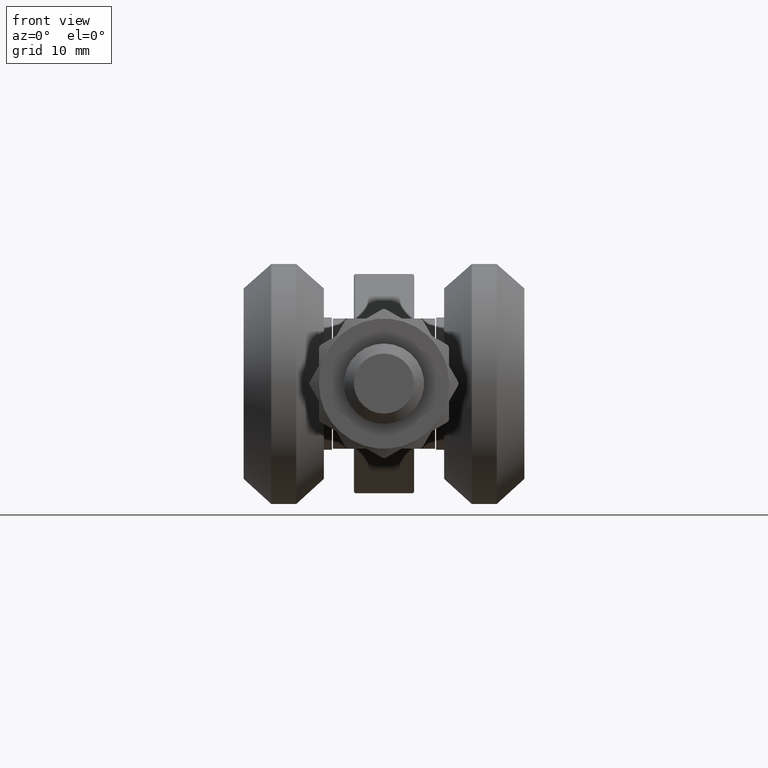
[diagram: clean part render]
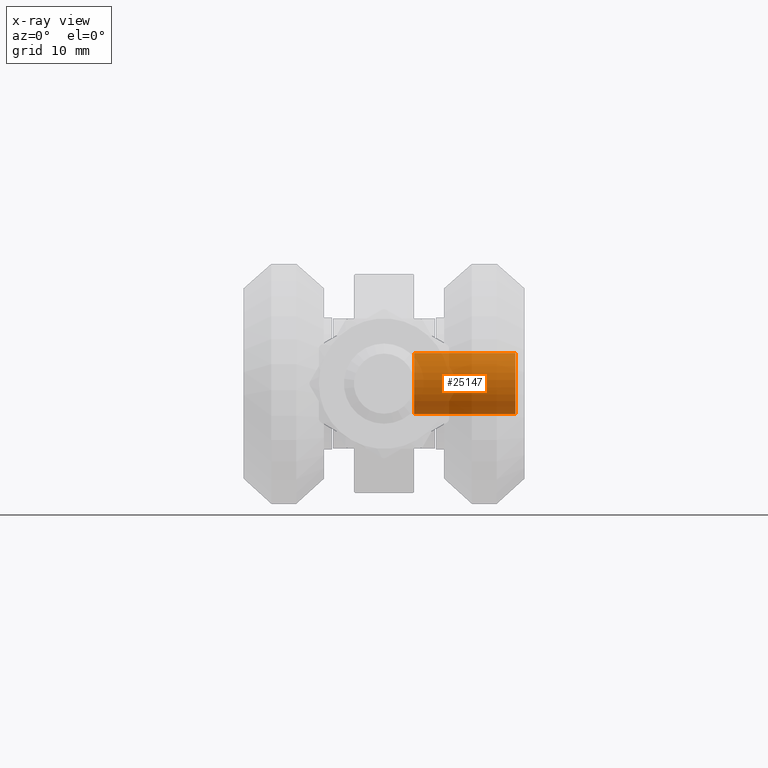
[diagram: x-ray — body ghosted, one internal face saturated and labeled with its STEP entity id]
A machine part, front view, then the same camera in x-ray: the body is ghosted and one INTERNAL B-rep face — a face not visible from any outside direction — is saturated and labeled: STEP entity #25147.
In plain terms, the highlighted cylindrical surface (bore or boss wall) has radius 3.05 mm, axis along (1, 0, 0).
Its self-contained STEP definition (entity closure, byte-faithful):
#1541 = DIRECTION ( 'NONE',  ( 1.000000000000000000, 0.000000000000000000, 0.000000000000000000 ) ) ;
#2265 = EDGE_LOOP ( 'NONE', ( #18915 ) ) ;
#3209 = CARTESIAN_POINT ( 'NONE',  ( 13.09999999999999076, 20.00000000000000355, 0.000000000000000000 ) ) ;
#6035 = CYLINDRICAL_SURFACE ( 'NONE', #6539, 3.049999999999997158 ) ;
#6539 = AXIS2_PLACEMENT_3D ( 'NONE', #23468, #10550, #17065 ) ;
#7101 = CARTESIAN_POINT ( 'NONE',  ( 13.09999999999999076, 20.00000000000000355, -3.049999999999997158 ) ) ;
#8222 = EDGE_CURVE ( 'NONE', #19512, #19512, #27759, .T. ) ;
#10550 = DIRECTION ( 'NONE',  ( 1.000000000000000000, -0.000000000000000000, -0.000000000000000000 ) ) ;
#11654 = CARTESIAN_POINT ( 'NONE',  ( 3.000000000000000888, 20.00000000000000355, -3.049999999999997158 ) ) ;
#11735 = AXIS2_PLACEMENT_3D ( 'NONE', #3209, #20562, #18204 ) ;
#17065 = DIRECTION ( 'NONE',  ( 0.000000000000000000, 0.000000000000000000, -1.000000000000000000 ) ) ;
#17455 = FACE_OUTER_BOUND ( 'NONE', #2265, .T. ) ;
#17726 = EDGE_LOOP ( 'NONE', ( #22674 ) ) ;
#18204 = DIRECTION ( 'NONE',  ( 0.000000000000000000, 0.000000000000000000, -1.000000000000000000 ) ) ;
#18681 = AXIS2_PLACEMENT_3D ( 'NONE', #27210, #1541, #22668 ) ;
#18915 = ORIENTED_EDGE ( 'NONE', *, *, #19578, .F. ) ;
#19512 = VERTEX_POINT ( 'NONE', #11654 ) ;
#19578 = EDGE_CURVE ( 'NONE', #26607, #26607, #19977, .T. ) ;
#19977 = CIRCLE ( 'NONE', #11735, 3.049999999999997158 ) ;
#20562 = DIRECTION ( 'NONE',  ( 1.000000000000000000, -0.000000000000000000, -0.000000000000000000 ) ) ;
#22668 = DIRECTION ( 'NONE',  ( 0.000000000000000000, 0.000000000000000000, -1.000000000000000000 ) ) ;
#22674 = ORIENTED_EDGE ( 'NONE', *, *, #8222, .T. ) ;
#23468 = CARTESIAN_POINT ( 'NONE',  ( 13.79999999999999538, 20.00000000000000355, 0.000000000000000000 ) ) ;
#24542 = FACE_OUTER_BOUND ( 'NONE', #17726, .T. ) ;
#25147 = ADVANCED_FACE ( 'NONE', ( #24542, #17455 ), #6035, .T. ) ;
#26607 = VERTEX_POINT ( 'NONE', #7101 ) ;
#27210 = CARTESIAN_POINT ( 'NONE',  ( 3.000000000000000888, 20.00000000000000355, 0.000000000000000000 ) ) ;
#27759 = CIRCLE ( 'NONE', #18681, 3.049999999999997158 ) ;